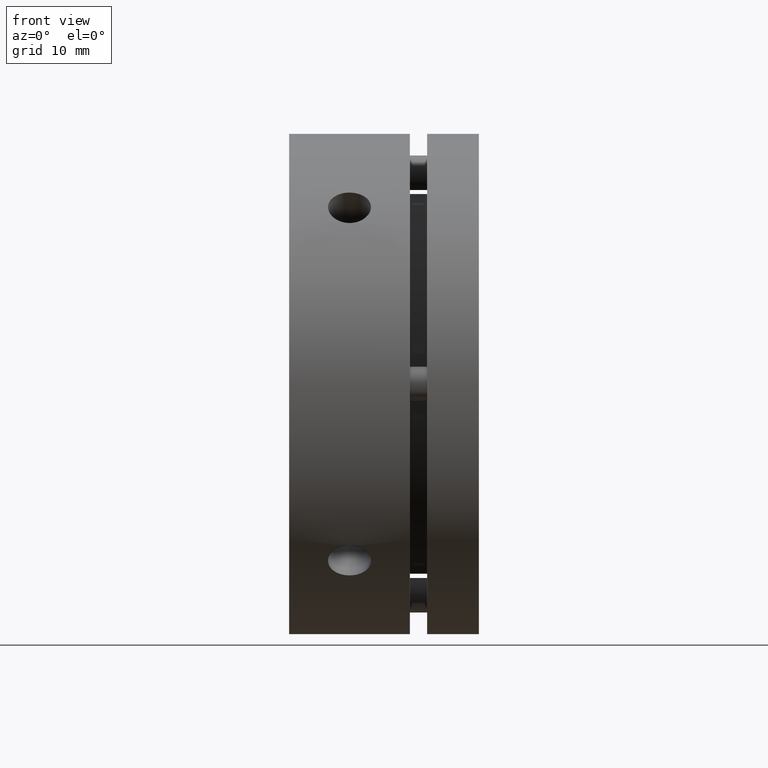
[diagram: clean part render]
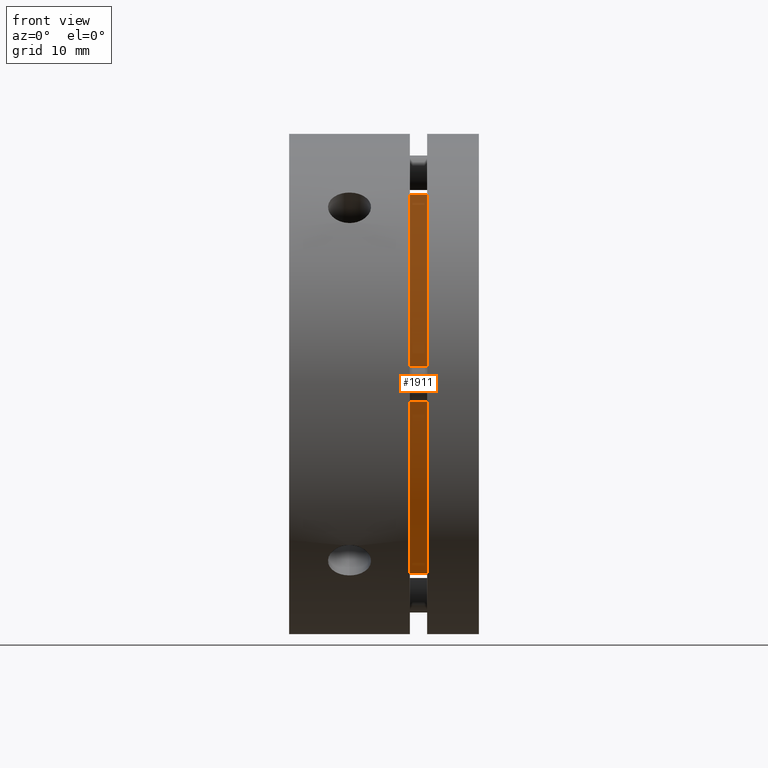
[diagram: same view with one face highlighted and labeled with its STEP entity id]
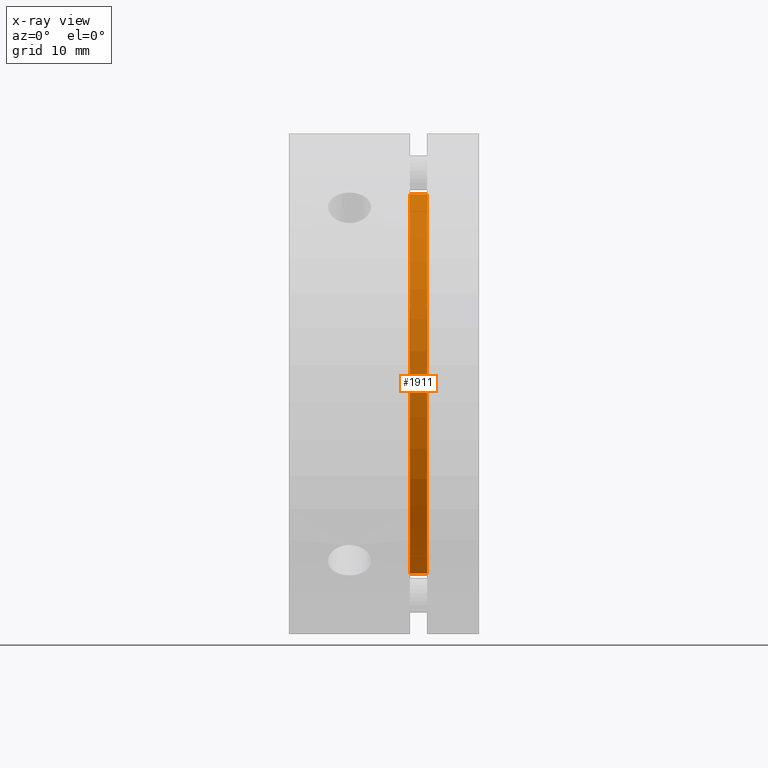
[diagram: x-ray of the same camera — body ghosted, the highlighted face saturated]
A machine part, front view. The second image highlights one B-rep face of the part: STEP entity #1911.
The next image is the same camera in x-ray: the body ghosted, the highlighted face saturated — about 0% of this face is hidden behind the body in this view.
In plain terms, the highlighted cylindrical surface (partial cylindrical patch) has radius 22 mm, axis along (-1, 0, 0).
Its self-contained STEP definition (entity closure, byte-faithful):
#234 = EDGE_LOOP ( 'NONE', ( #754, #753, #1233, #1209 ) ) ;
#277 = EDGE_CURVE ( 'NONE', #416, #417, #569, .T. ) ;
#416 = VERTEX_POINT ( 'NONE', #2025 ) ;
#417 = VERTEX_POINT ( 'NONE', #2026 ) ;
#420 = VERTEX_POINT ( 'NONE', #2029 ) ;
#424 = VERTEX_POINT ( 'NONE', #2033 ) ;
#505 = AXIS2_PLACEMENT_3D ( 'NONE', #2811, #2809, #2807 ) ;
#569 = CIRCLE ( 'NONE', #3098, 22.00000000000001100 ) ;
#753 = ORIENTED_EDGE ( 'NONE', *, *, #1047, .T. ) ;
#754 = ORIENTED_EDGE ( 'NONE', *, *, #3549, .F. ) ;
#1047 = EDGE_CURVE ( 'NONE', #424, #420, #1255, .T. ) ;
#1209 = ORIENTED_EDGE ( 'NONE', *, *, #277, .T. ) ;
#1233 = ORIENTED_EDGE ( 'NONE', *, *, #3551, .T. ) ;
#1255 = CIRCLE ( 'NONE', #3220, 22.00000000000001100 ) ;
#1433 = FACE_OUTER_BOUND ( 'NONE', #234, .T. ) ;
#1442 = CYLINDRICAL_SURFACE ( 'NONE', #505, 22.00000000000001100 ) ;
#1563 = CARTESIAN_POINT ( 'NONE',  ( 14.00000000000000000, 0.0000000000000000000, 0.0000000000000000000 ) ) ;
#1564 = DIRECTION ( 'NONE',  ( 1.000000000000000000, -0.0000000000000000000, -0.0000000000000000000 ) ) ;
#1565 = DIRECTION ( 'NONE',  ( 0.0000000000000000000, 0.0000000000000000000, 1.000000000000000000 ) ) ;
#1636 = LINE ( 'NONE', #3235, #1641 ) ;
#1641 = VECTOR ( 'NONE', #3257, 1000.000000000000000 ) ;
#1642 = LINE ( 'NONE', #3256, #1644 ) ;
#1644 = VECTOR ( 'NONE', #3254, 1000.000000000000000 ) ;
#1911 = ADVANCED_FACE ( 'NONE', ( #1433 ), #1442, .T. ) ;
#2025 = CARTESIAN_POINT ( 'NONE',  ( 14.00000000000000000, 0.0000000000000000000, 22.00000000000001100 ) ) ;
#2026 = CARTESIAN_POINT ( 'NONE',  ( 14.00000000000000000, 2.694222958124178000E-015, -22.00000000000001100 ) ) ;
#2029 = CARTESIAN_POINT ( 'NONE',  ( 15.99999999999999600, 0.0000000000000000000, 22.00000000000001100 ) ) ;
#2033 = CARTESIAN_POINT ( 'NONE',  ( 15.99999999999999600, 2.694222958124178000E-015, -22.00000000000001100 ) ) ;
#2533 = CARTESIAN_POINT ( 'NONE',  ( 15.99999999999999600, 0.0000000000000000000, 0.0000000000000000000 ) ) ;
#2534 = DIRECTION ( 'NONE',  ( -1.000000000000000000, 0.0000000000000000000, 0.0000000000000000000 ) ) ;
#2535 = DIRECTION ( 'NONE',  ( 0.0000000000000000000, 0.0000000000000000000, 1.000000000000000000 ) ) ;
#2807 = DIRECTION ( 'NONE',  ( 0.0000000000000000000, 0.0000000000000000000, 1.000000000000000000 ) ) ;
#2809 = DIRECTION ( 'NONE',  ( -1.000000000000000000, 0.0000000000000000000, 0.0000000000000000000 ) ) ;
#2811 = CARTESIAN_POINT ( 'NONE',  ( 15.00000000000000000, 0.0000000000000000000, 0.0000000000000000000 ) ) ;
#3098 = AXIS2_PLACEMENT_3D ( 'NONE', #1563, #1564, #1565 ) ;
#3220 = AXIS2_PLACEMENT_3D ( 'NONE', #2533, #2534, #2535 ) ;
#3235 = CARTESIAN_POINT ( 'NONE',  ( 15.00000000000000000, 2.694222958124178000E-015, -22.00000000000001100 ) ) ;
#3254 = DIRECTION ( 'NONE',  ( -1.000000000000000000, 0.0000000000000000000, 0.0000000000000000000 ) ) ;
#3256 = CARTESIAN_POINT ( 'NONE',  ( 15.00000000000000000, 0.0000000000000000000, 22.00000000000001100 ) ) ;
#3257 = DIRECTION ( 'NONE',  ( -1.000000000000000000, 0.0000000000000000000, 0.0000000000000000000 ) ) ;
#3549 = EDGE_CURVE ( 'NONE', #424, #417, #1636, .T. ) ;
#3551 = EDGE_CURVE ( 'NONE', #420, #416, #1642, .T. ) ;